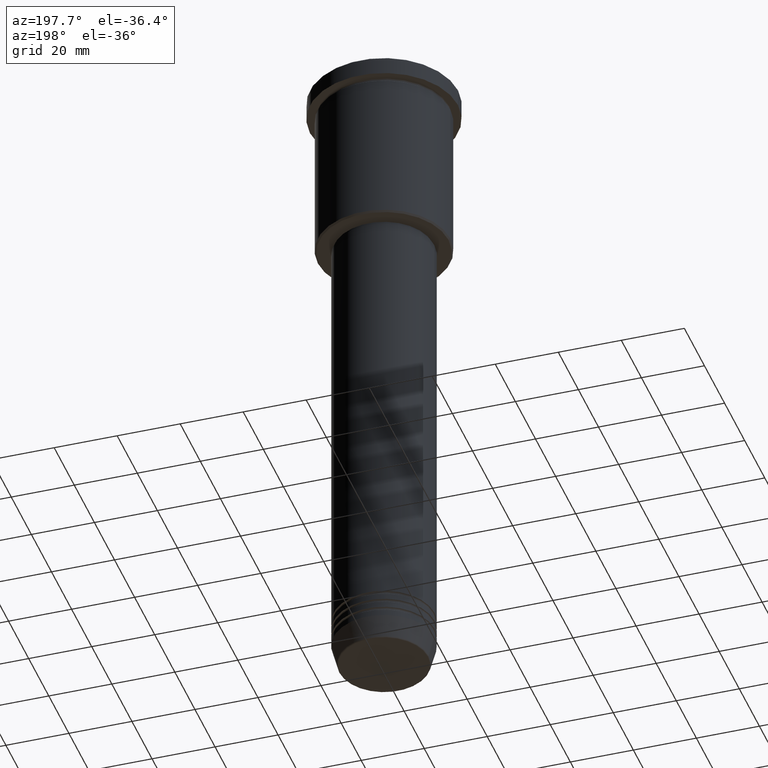
[diagram: clean part render]
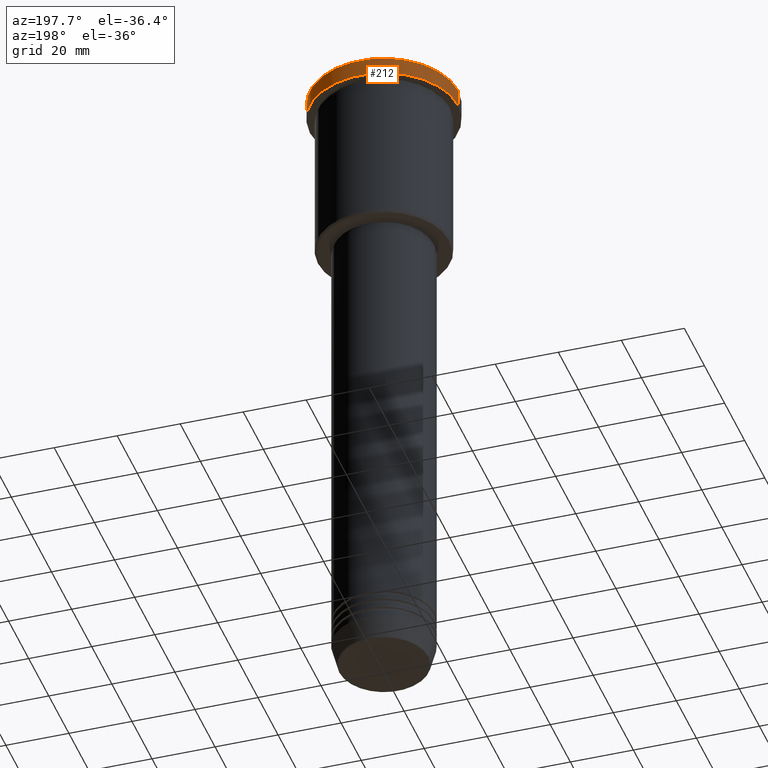
[diagram: same view with one face highlighted and labeled with its STEP entity id]
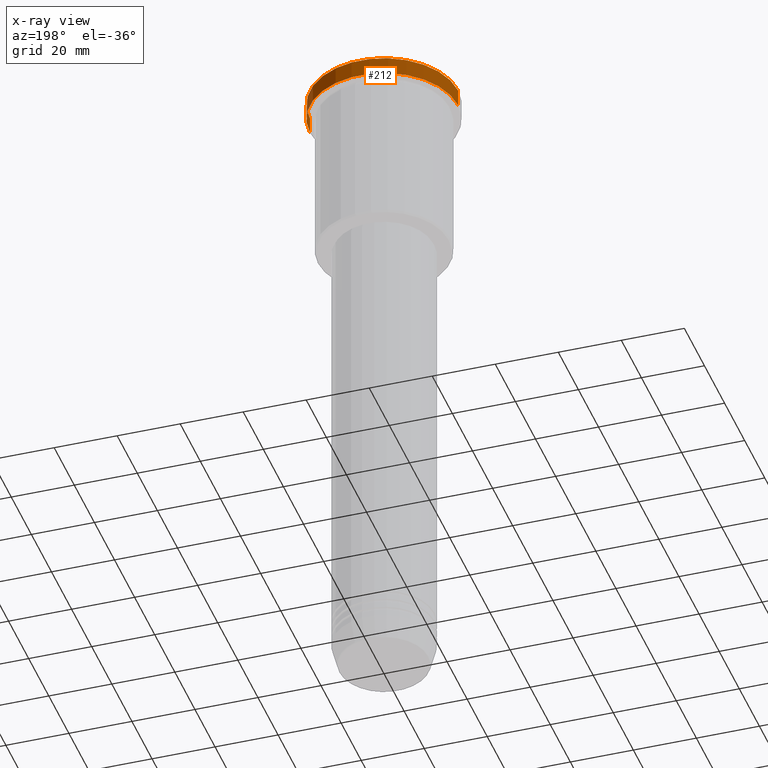
[diagram: x-ray of the same camera — body ghosted, the highlighted face saturated]
A machine part, auxiliary view. The second image highlights one B-rep face of the part: STEP entity #212.
The next image is the same camera in x-ray: the body ghosted, the highlighted face saturated — about 0% of this face is hidden behind the body in this view.
In plain terms, the highlighted cylindrical surface (partial cylindrical patch) has radius 23.5 mm, axis along (-0, -0, 1).
Its self-contained STEP definition (entity closure, byte-faithful):
#6 = CYLINDRICAL_SURFACE ( 'NONE', #741, 23.50000000000000000 ) ;
#64 = DIRECTION ( 'NONE',  ( -0.000000000000000000, -0.000000000000000000, 1.000000000000000000 ) ) ;
#70 = EDGE_LOOP ( 'NONE', ( #892, #647, #632, #180 ) ) ;
#93 = EDGE_CURVE ( 'NONE', #664, #835, #637, .T. ) ;
#109 = EDGE_CURVE ( 'NONE', #835, #376, #1058, .T. ) ;
#155 = DIRECTION ( 'NONE',  ( 1.000000000000000000, 0.000000000000000000, 0.000000000000000000 ) ) ;
#169 = CARTESIAN_POINT ( 'NONE',  ( 0.000000000000000000, 0.000000000000000000, -0.5000000000000004441 ) ) ;
#180 = ORIENTED_EDGE ( 'NONE', *, *, #581, .F. ) ;
#212 = ADVANCED_FACE ( 'NONE', ( #825 ), #6, .T. ) ;
#213 = DIRECTION ( 'NONE',  ( -0.000000000000000000, -0.000000000000000000, 1.000000000000000000 ) ) ;
#225 = CARTESIAN_POINT ( 'NONE',  ( -23.50000000000000000, 2.877919977996280320E-15, -0.5000000000000004441 ) ) ;
#255 = VERTEX_POINT ( 'NONE', #989 ) ;
#274 = AXIS2_PLACEMENT_3D ( 'NONE', #169, #714, #155 ) ;
#334 = CIRCLE ( 'NONE', #831, 23.50000000000000000 ) ;
#376 = VERTEX_POINT ( 'NONE', #1033 ) ;
#399 = DIRECTION ( 'NONE',  ( 1.000000000000000000, 0.000000000000000000, 0.000000000000000000 ) ) ;
#414 = DIRECTION ( 'NONE',  ( 1.000000000000000000, 0.000000000000000000, 0.000000000000000000 ) ) ;
#431 = LINE ( 'NONE', #625, #785 ) ;
#581 = EDGE_CURVE ( 'NONE', #255, #376, #431, .T. ) ;
#625 = CARTESIAN_POINT ( 'NONE',  ( 23.50000000000000000, 0.000000000000000000, 0.000000000000000000 ) ) ;
#632 = ORIENTED_EDGE ( 'NONE', *, *, #109, .T. ) ;
#637 = LINE ( 'NONE', #1174, #1112 ) ;
#647 = ORIENTED_EDGE ( 'NONE', *, *, #93, .T. ) ;
#664 = VERTEX_POINT ( 'NONE', #1037 ) ;
#714 = DIRECTION ( 'NONE',  ( 0.000000000000000000, 0.000000000000000000, -1.000000000000000000 ) ) ;
#741 = AXIS2_PLACEMENT_3D ( 'NONE', #1121, #213, #399 ) ;
#785 = VECTOR ( 'NONE', #908, 1000.000000000000000 ) ;
#825 = FACE_OUTER_BOUND ( 'NONE', #70, .T. ) ;
#831 = AXIS2_PLACEMENT_3D ( 'NONE', #897, #64, #414 ) ;
#835 = VERTEX_POINT ( 'NONE', #225 ) ;
#874 = EDGE_CURVE ( 'NONE', #255, #664, #334, .T. ) ;
#892 = ORIENTED_EDGE ( 'NONE', *, *, #874, .T. ) ;
#897 = CARTESIAN_POINT ( 'NONE',  ( 0.000000000000000000, 0.000000000000000000, -5.999999999999994671 ) ) ;
#908 = DIRECTION ( 'NONE',  ( -0.000000000000000000, -0.000000000000000000, 1.000000000000000000 ) ) ;
#989 = CARTESIAN_POINT ( 'NONE',  ( 23.50000000000000000, 0.000000000000000000, -5.999999999999994671 ) ) ;
#1003 = DIRECTION ( 'NONE',  ( -0.000000000000000000, -0.000000000000000000, 1.000000000000000000 ) ) ;
#1033 = CARTESIAN_POINT ( 'NONE',  ( 23.50000000000000000, 0.000000000000000000, -0.5000000000000004441 ) ) ;
#1037 = CARTESIAN_POINT ( 'NONE',  ( -23.50000000000000000, 2.877919977996280320E-15, -5.999999999999994671 ) ) ;
#1058 = CIRCLE ( 'NONE', #274, 23.50000000000000000 ) ;
#1112 = VECTOR ( 'NONE', #1003, 1000.000000000000000 ) ;
#1121 = CARTESIAN_POINT ( 'NONE',  ( 0.000000000000000000, 0.000000000000000000, 0.000000000000000000 ) ) ;
#1174 = CARTESIAN_POINT ( 'NONE',  ( -23.50000000000000000, 2.877919977996280320E-15, 0.000000000000000000 ) ) ;